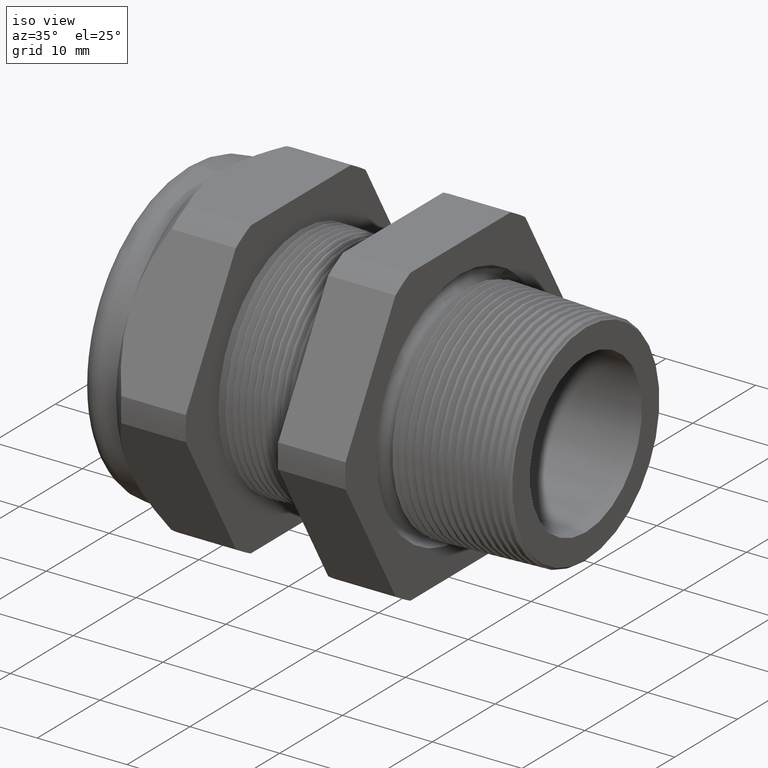
[diagram: clean part render]
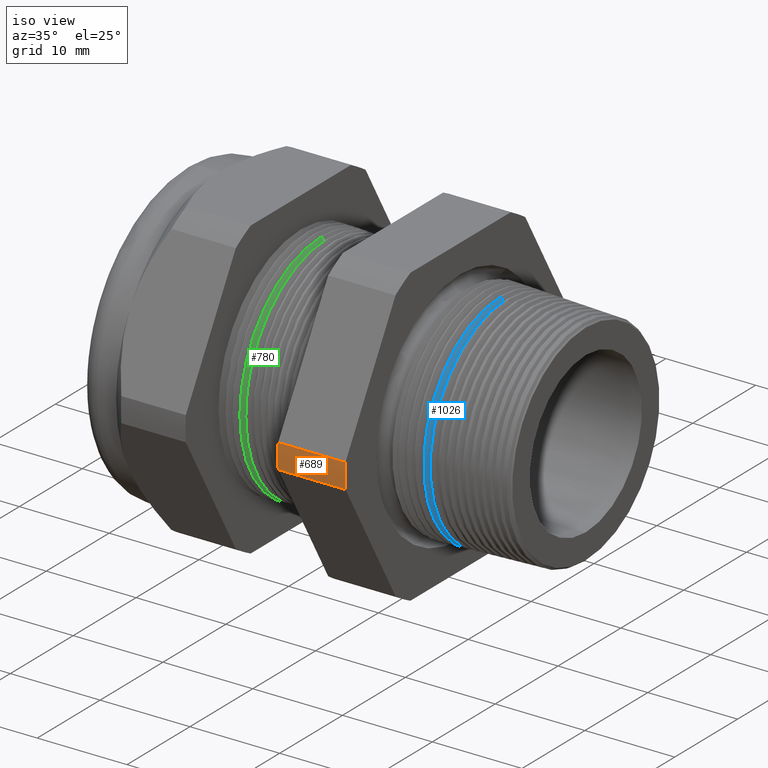
[diagram: same view with three faces highlighted in distinct colors, each labeled with its STEP entity id]
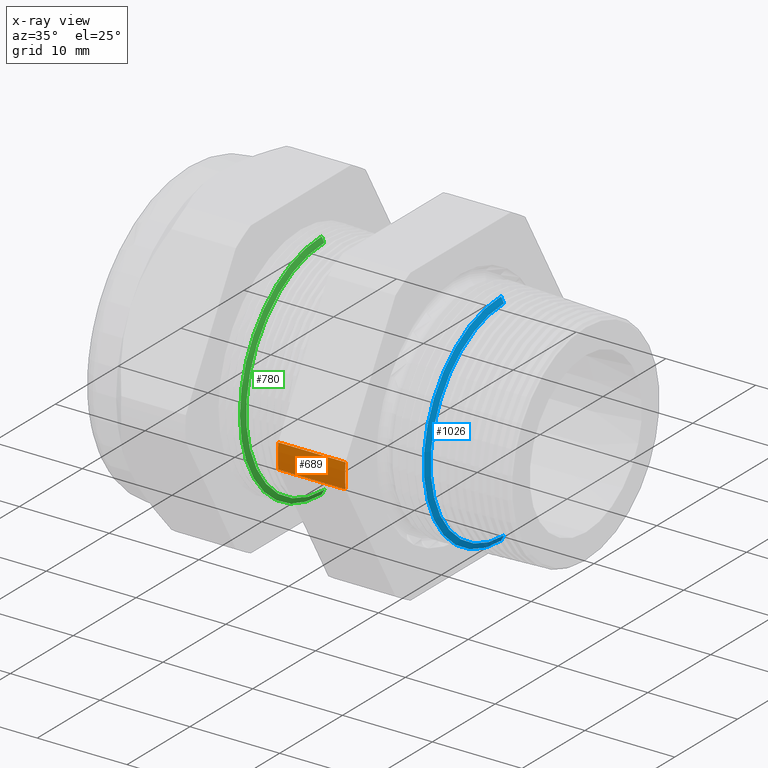
[diagram: x-ray of the same camera — body ghosted, the three highlighted faces saturated]
A machine part, iso view with three faces highlighted in distinct colors.
The next image is the same camera in x-ray (body ghosted, the three faces saturated) — at least one of them is partly hidden behind the body in this view.
Their STEP definitions:

[orange] entity #689 — the highlighted cylindrical surface (partial cylindrical patch) has radius 18.3261 mm, axis along (-1, 0, 0).
#98 = ORIENTED_EDGE ( 'NONE', *, *, #687, .T. ) ;
#100 = EDGE_LOOP ( 'NONE', ( #98, #667, #668, #670 ) ) ;
#173 = VERTEX_POINT ( 'NONE', #1672 ) ;
#213 = EDGE_CURVE ( 'NONE', #214, #173, #1793, .T. ) ;
#214 = VERTEX_POINT ( 'NONE', #1788 ) ;
#276 = VERTEX_POINT ( 'NONE', #1894 ) ;
#330 = VERTEX_POINT ( 'NONE', #2043 ) ;
#331 = EDGE_CURVE ( 'NONE', #276, #330, #2042, .T. ) ;
#667 = ORIENTED_EDGE ( 'NONE', *, *, #331, .F. ) ;
#668 = ORIENTED_EDGE ( 'NONE', *, *, #669, .F. ) ;
#669 = EDGE_CURVE ( 'NONE', #173, #276, #2663, .T. ) ;
#670 = ORIENTED_EDGE ( 'NONE', *, *, #213, .F. ) ;
#687 = EDGE_CURVE ( 'NONE', #214, #330, #2704, .T. ) ;
#689 = ADVANCED_FACE ( 'NONE', ( #2700 ), #2698, .T. ) ;
#1672 = CARTESIAN_POINT ( 'NONE',  ( -0.3100000000000000000, -0.7194909755756819800, -0.05380507471562082100 ) ) ;
#1788 = CARTESIAN_POINT ( 'NONE',  ( -0.3100000000000000000, -0.7194909755756819800, 0.05380507471562025900 ) ) ;
#1789 = DIRECTION ( 'NONE',  ( 0.0000000000000000000, 0.0000000000000000000, -1.000000000000000000 ) ) ;
#1790 = DIRECTION ( 'NONE',  ( 1.000000000000000000, 0.0000000000000000000, 0.0000000000000000000 ) ) ;
#1791 = CARTESIAN_POINT ( 'NONE',  ( -0.3100000000000000000, 0.0000000000000000000, 0.0000000000000000000 ) ) ;
#1792 = AXIS2_PLACEMENT_3D ( 'NONE', #1791, #1790, #1789 ) ;
#1793 = CIRCLE ( 'NONE', #1792, 0.7215000000000000300 ) ;
#1894 = CARTESIAN_POINT ( 'NONE',  ( -0.6052755905511810800, -0.7194909755756819800, -0.05380507471562082100 ) ) ;
#2038 = DIRECTION ( 'NONE',  ( 0.0000000000000000000, 0.0000000000000000000, 1.000000000000000000 ) ) ;
#2039 = DIRECTION ( 'NONE',  ( -1.000000000000000000, 0.0000000000000000000, 0.0000000000000000000 ) ) ;
#2040 = CARTESIAN_POINT ( 'NONE',  ( -0.6052755905511810800, 0.0000000000000000000, 0.0000000000000000000 ) ) ;
#2041 = AXIS2_PLACEMENT_3D ( 'NONE', #2040, #2039, #2038 ) ;
#2042 = CIRCLE ( 'NONE', #2041, 0.7215000000000000300 ) ;
#2043 = CARTESIAN_POINT ( 'NONE',  ( -0.6052755905511810800, -0.7194909755756819800, 0.05380507471562025900 ) ) ;
#2660 = DIRECTION ( 'NONE',  ( -1.000000000000000000, 0.0000000000000000000, 0.0000000000000000000 ) ) ;
#2661 = VECTOR ( 'NONE', #2660, 39.37007874015748100 ) ;
#2662 = CARTESIAN_POINT ( 'NONE',  ( 0.2400000000000001900, -0.7194909755756819800, -0.05380507471562082100 ) ) ;
#2663 = LINE ( 'NONE', #2662, #2661 ) ;
#2694 = DIRECTION ( 'NONE',  ( 0.0000000000000000000, 0.0000000000000000000, 1.000000000000000000 ) ) ;
#2695 = DIRECTION ( 'NONE',  ( -1.000000000000000000, 0.0000000000000000000, 0.0000000000000000000 ) ) ;
#2696 = CARTESIAN_POINT ( 'NONE',  ( 0.2400000000000001900, 0.0000000000000000000, 0.0000000000000000000 ) ) ;
#2697 = AXIS2_PLACEMENT_3D ( 'NONE', #2696, #2695, #2694 ) ;
#2698 = CYLINDRICAL_SURFACE ( 'NONE', #2697, 0.7215000000000000300 ) ;
#2700 = FACE_OUTER_BOUND ( 'NONE', #100, .T. ) ;
#2701 = DIRECTION ( 'NONE',  ( -1.000000000000000000, 0.0000000000000000000, 0.0000000000000000000 ) ) ;
#2702 = VECTOR ( 'NONE', #2701, 39.37007874015748100 ) ;
#2703 = CARTESIAN_POINT ( 'NONE',  ( 0.2400000000000001900, -0.7194909755756819800, 0.05380507471562025900 ) ) ;
#2704 = LINE ( 'NONE', #2703, #2702 ) ;

[blue] entity #1026 — the highlighted conical surface has half-angle 62 deg.
#477 = VERTEX_POINT ( 'NONE', #2277 ) ;
#479 = EDGE_CURVE ( 'NONE', #558, #477, #2275, .T. ) ;
#500 = EDGE_CURVE ( 'NONE', #557, #501, #2304, .T. ) ;
#501 = VERTEX_POINT ( 'NONE', #2300 ) ;
#557 = VERTEX_POINT ( 'NONE', #2452 ) ;
#558 = VERTEX_POINT ( 'NONE', #2451 ) ;
#954 = ORIENTED_EDGE ( 'NONE', *, *, #955, .F. ) ;
#955 = EDGE_CURVE ( 'NONE', #558, #557, #3006, .T. ) ;
#956 = ORIENTED_EDGE ( 'NONE', *, *, #479, .T. ) ;
#957 = ORIENTED_EDGE ( 'NONE', *, *, #6049, .T. ) ;
#1026 = ADVANCED_FACE ( 'NONE', ( #3106 ), #3105, .T. ) ;
#1027 = EDGE_LOOP ( 'NONE', ( #1028, #954, #956, #957 ) ) ;
#1028 = ORIENTED_EDGE ( 'NONE', *, *, #500, .F. ) ;
#2272 = DIRECTION ( 'NONE',  ( -0.4694715627859021900, 0.0000000000000000000, 0.8829475928589208800 ) ) ;
#2273 = VECTOR ( 'NONE', #2272, 39.37007874015748100 ) ;
#2274 = CARTESIAN_POINT ( 'NONE',  ( -0.1349999999999999500, 0.0000000000000000000, 0.4905444626882252100 ) ) ;
#2275 = LINE ( 'NONE', #2274, #2273 ) ;
#2277 = CARTESIAN_POINT ( 'NONE',  ( -0.1316891776990506100, 0.0000000000000000000, 0.4843177115647711600 ) ) ;
#2300 = CARTESIAN_POINT ( 'NONE',  ( -0.1316891776990506100, 5.932609851860810900E-017, -0.4843177115647711600 ) ) ;
#2301 = DIRECTION ( 'NONE',  ( -0.4694715627859021900, 1.081298943409537900E-016, -0.8829475928589208800 ) ) ;
#2302 = VECTOR ( 'NONE', #2301, 39.37007874015748100 ) ;
#2303 = CARTESIAN_POINT ( 'NONE',  ( -0.1349999999999999500, 6.007437060705932800E-017, -0.4905444626882252100 ) ) ;
#2304 = LINE ( 'NONE', #2303, #2302 ) ;
#2451 = CARTESIAN_POINT ( 'NONE',  ( -0.1187370280109210400, 0.0000000000000000000, 0.4599582608631793700 ) ) ;
#2452 = CARTESIAN_POINT ( 'NONE',  ( -0.1187370280109210400, 5.782022735728219800E-017, -0.4599582608631793700 ) ) ;
#3002 = DIRECTION ( 'NONE',  ( 0.0000000000000000000, 0.0000000000000000000, -1.000000000000000000 ) ) ;
#3003 = DIRECTION ( 'NONE',  ( 1.000000000000000000, 0.0000000000000000000, 0.0000000000000000000 ) ) ;
#3004 = CARTESIAN_POINT ( 'NONE',  ( -0.1187370280109210400, 0.0000000000000000000, 0.0000000000000000000 ) ) ;
#3005 = AXIS2_PLACEMENT_3D ( 'NONE', #3004, #3003, #3002 ) ;
#3006 = CIRCLE ( 'NONE', #3005, 0.4599582608631793700 ) ;
#3100 = DIRECTION ( 'NONE',  ( 0.0000000000000000000, 0.0000000000000000000, 1.000000000000000000 ) ) ;
#3101 = DIRECTION ( 'NONE',  ( -1.000000000000000000, 0.0000000000000000000, 0.0000000000000000000 ) ) ;
#3102 = CARTESIAN_POINT ( 'NONE',  ( -0.1349999999999999500, 0.0000000000000000000, 0.0000000000000000000 ) ) ;
#3103 = AXIS2_PLACEMENT_3D ( 'NONE', #3102, #3101, #3100 ) ;
#3105 = CONICAL_SURFACE ( 'NONE', #3103, 0.4905444626882252100, 1.082104136236471400 ) ;
#3106 = FACE_OUTER_BOUND ( 'NONE', #1027, .T. ) ;
#4813 = DIRECTION ( 'NONE',  ( 0.0000000000000000000, 0.0000000000000000000, 1.000000000000000000 ) ) ;
#4814 = DIRECTION ( 'NONE',  ( 1.000000000000000000, 0.0000000000000000000, 0.0000000000000000000 ) ) ;
#4815 = AXIS2_PLACEMENT_3D ( 'NONE', #4823, #4814, #4813 ) ;
#4816 = CIRCLE ( 'NONE', #4815, 0.4843177115647711600 ) ;
#4823 = CARTESIAN_POINT ( 'NONE',  ( -0.1316891776990506100, 0.0000000000000000000, 0.0000000000000000000 ) ) ;
#6049 = EDGE_CURVE ( 'NONE', #477, #501, #4816, .T. ) ;

[green] entity #780 — the highlighted conical surface has half-angle 62 deg.
#780 = ADVANCED_FACE ( 'NONE', ( #2788 ), #2787, .T. ) ;
#781 = EDGE_LOOP ( 'NONE', ( #782, #783, #837, #838 ) ) ;
#782 = ORIENTED_EDGE ( 'NONE', *, *, #5968, .F. ) ;
#783 = ORIENTED_EDGE ( 'NONE', *, *, #784, .F. ) ;
#784 = EDGE_CURVE ( 'NONE', #5919, #5918, #2782, .T. ) ;
#837 = ORIENTED_EDGE ( 'NONE', *, *, #5845, .T. ) ;
#838 = ORIENTED_EDGE ( 'NONE', *, *, #6091, .T. ) ;
#2779 = DIRECTION ( 'NONE',  ( 0.0000000000000000000, 0.0000000000000000000, -1.000000000000000000 ) ) ;
#2780 = DIRECTION ( 'NONE',  ( 1.000000000000000000, 0.0000000000000000000, 0.0000000000000000000 ) ) ;
#2781 = AXIS2_PLACEMENT_3D ( 'NONE', #2786, #2780, #2779 ) ;
#2782 = CIRCLE ( 'NONE', #2781, 0.4895114984791283900 ) ;
#2783 = DIRECTION ( 'NONE',  ( 0.0000000000000000000, 0.0000000000000000000, 1.000000000000000000 ) ) ;
#2784 = DIRECTION ( 'NONE',  ( -1.000000000000000000, 0.0000000000000000000, 0.0000000000000000000 ) ) ;
#2785 = AXIS2_PLACEMENT_3D ( 'NONE', #2792, #2784, #2783 ) ;
#2786 = CARTESIAN_POINT ( 'NONE',  ( -0.9067624839723553700, 0.0000000000000000000, 0.0000000000000000000 ) ) ;
#2787 = CONICAL_SURFACE ( 'NONE', #2785, 0.5150000000000000100, 1.082104136236472500 ) ;
#2788 = FACE_OUTER_BOUND ( 'NONE', #781, .T. ) ;
#2792 = CARTESIAN_POINT ( 'NONE',  ( -0.9203149606299212400, 0.0000000000000000000, 0.0000000000000000000 ) ) ;
#4462 = DIRECTION ( 'NONE',  ( -0.4694715627859013000, 0.0000000000000000000, 0.8829475928589214400 ) ) ;
#4463 = VECTOR ( 'NONE', #4462, 39.37007874015748100 ) ;
#4464 = CARTESIAN_POINT ( 'NONE',  ( -0.9203149606299212400, 0.0000000000000000000, 0.5150000000000000100 ) ) ;
#4465 = LINE ( 'NONE', #4464, #4463 ) ;
#4574 = CARTESIAN_POINT ( 'NONE',  ( -0.9067624839723553700, 0.0000000000000000000, 0.4895114984791283900 ) ) ;
#4575 = CARTESIAN_POINT ( 'NONE',  ( -0.9067624839723553700, 6.131250345883928900E-017, -0.4895114984791283900 ) ) ;
#4662 = DIRECTION ( 'NONE',  ( -0.4694715627859013000, 1.081298943409538600E-016, -0.8829475928589214400 ) ) ;
#4663 = VECTOR ( 'NONE', #4662, 39.37007874015748100 ) ;
#4664 = CARTESIAN_POINT ( 'NONE',  ( -0.9203149606299212400, 6.306931015608869800E-017, -0.5150000000000000100 ) ) ;
#4665 = LINE ( 'NONE', #4664, #4663 ) ;
#4666 = CARTESIAN_POINT ( 'NONE',  ( -0.9186122520180044500, 0.0000000000000000000, 0.5117976708507950800 ) ) ;
#4677 = CARTESIAN_POINT ( 'NONE',  ( -0.9186122520180044500, 6.268597775676621100E-017, -0.5117976708507950800 ) ) ;
#4931 = DIRECTION ( 'NONE',  ( 0.0000000000000000000, 0.0000000000000000000, 1.000000000000000000 ) ) ;
#4932 = DIRECTION ( 'NONE',  ( 1.000000000000000000, 0.0000000000000000000, 0.0000000000000000000 ) ) ;
#4933 = CARTESIAN_POINT ( 'NONE',  ( -0.9186122520180044500, 0.0000000000000000000, 0.0000000000000000000 ) ) ;
#4934 = AXIS2_PLACEMENT_3D ( 'NONE', #4933, #4932, #4931 ) ;
#4935 = CIRCLE ( 'NONE', #4934, 0.5117976708507950800 ) ;
#5845 = EDGE_CURVE ( 'NONE', #5919, #5966, #4465, .T. ) ;
#5918 = VERTEX_POINT ( 'NONE', #4575 ) ;
#5919 = VERTEX_POINT ( 'NONE', #4574 ) ;
#5959 = VERTEX_POINT ( 'NONE', #4677 ) ;
#5966 = VERTEX_POINT ( 'NONE', #4666 ) ;
#5968 = EDGE_CURVE ( 'NONE', #5918, #5959, #4665, .T. ) ;
#6091 = EDGE_CURVE ( 'NONE', #5966, #5959, #4935, .T. ) ;